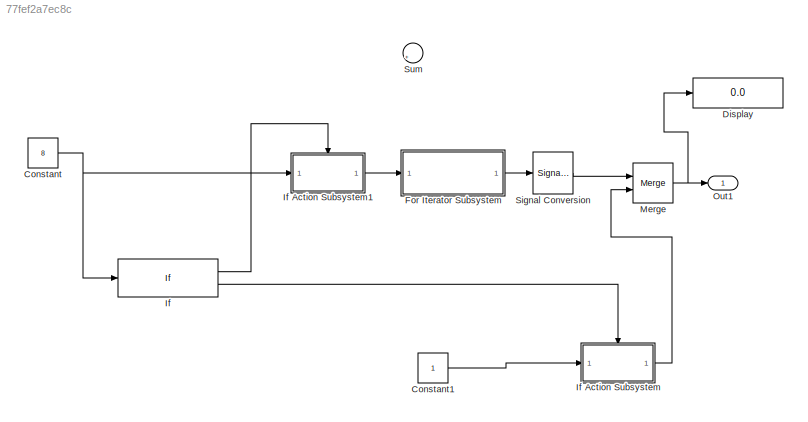
MODEL slx_77fef2a7ec8c
KIND model
CONFIG AbsTol = auto
CONFIG EnableMultiTasking = off
CONFIG FixedStep = auto
CONFIG MaxStep = auto
CONFIG MinStep = auto
CONFIG RelTol = 1e-3
CONFIG SampleTimeConstraint = Unconstrained
CONFIG SolverName = VariableStepAuto
CONFIG StartTime = 0.0
CONFIG StopTime = 10.0
BLOCK [Constant] Constant
  OutDataTypeStr = double
  Value = 8
BLOCK [Constant] Constant1
  OutDataTypeStr = double
BLOCK [Display] Display
  Decimation = 1
  Ports = [1]
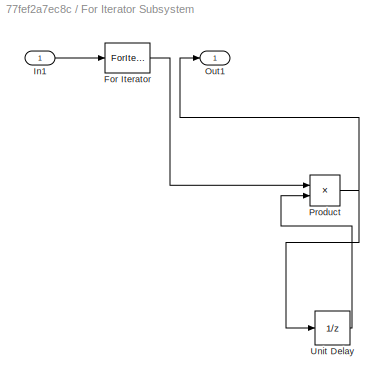
BLOCK [SubSystem] For Iterator Subsystem
  Ports = [1, 1]
  RequestExecContextInheritance = off
  TreatAsAtomicUnit = on
BLOCK [ForIterator] For Iterator Subsystem/For Iterator
  IterationSource = external
  Ports = [1, 1]
  ResetStates = reset
BLOCK [Inport] For Iterator Subsystem/In1
BLOCK [Outport] For Iterator Subsystem/Out1
BLOCK [Product] For Iterator Subsystem/Product
  OutDataTypeStr = double
  Ports = [2, 1]
BLOCK [UnitDelay] For Iterator Subsystem/Unit Delay
  HasFrameUpgradeWarning = on
  InitialCondition = 1
  SampleTime = -1
BLOCK [If] If
  IfExpression = u1 ~= 0
  Ports = [1, 2]
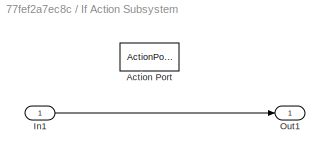
BLOCK [SubSystem] If Action Subsystem
  Ports = [1, 1, 0, 0, 0, 0, 0, 1]
  RequestExecContextInheritance = off
  TreatAsAtomicUnit = on
BLOCK [ActionPort] If Action Subsystem/Action Port
  ActionPortLabel = else
  InitializeStates = reset
BLOCK [Inport] If Action Subsystem/In1
BLOCK [Outport] If Action Subsystem/Out1
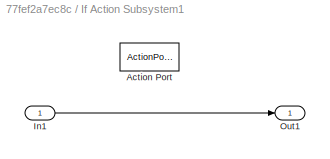
BLOCK [SubSystem] If Action Subsystem1
  Ports = [1, 1, 0, 0, 0, 0, 0, 1]
  RequestExecContextInheritance = off
  TreatAsAtomicUnit = on
BLOCK [ActionPort] If Action Subsystem1/Action Port
  ActionPortLabel = if(u1 ~= 0)
  InitializeStates = reset
BLOCK [Inport] If Action Subsystem1/In1
BLOCK [Outport] If Action Subsystem1/Out1
BLOCK [Merge] Merge
  Ports = [2, 1]
BLOCK [Outport] Out1
BLOCK [SignalConversion] Signal Conversion
  OverrideOpt = off
BLOCK [Sum] Sum
  Inputs = |++
  Ports = [2, 1]
LINE Constant1:1 -> If Action Subsystem:1
NET Constant:1 -> If Action Subsystem1:1, If:1
LINE For Iterator Subsystem/For Iterator:1 -> For Iterator Subsystem/Product:1
LINE For Iterator Subsystem/In1:1 -> For Iterator Subsystem/For Iterator:1
NET For Iterator Subsystem/Product:1 -> For Iterator Subsystem/Out1:1, For Iterator Subsystem/Unit Delay:1
LINE For Iterator Subsystem/Unit Delay:1 -> For Iterator Subsystem/Product:2
LINE For Iterator Subsystem:1 -> Signal Conversion:1
LINE If Action Subsystem/In1:1 -> If Action Subsystem/Out1:1
LINE If Action Subsystem1/In1:1 -> If Action Subsystem1/Out1:1
LINE If Action Subsystem1:1 -> For Iterator Subsystem:1
LINE If Action Subsystem:1 -> Merge:2
LINE If:1 -> If Action Subsystem1:ifaction
LINE If:2 -> If Action Subsystem:ifaction
NET Merge:1 -> Display:1, Out1:1
LINE Signal Conversion:1 -> Merge:1
note: NET lines group one-source signal fan-out (src -> all destinations, sorted); 1:1 wires keep LINE
